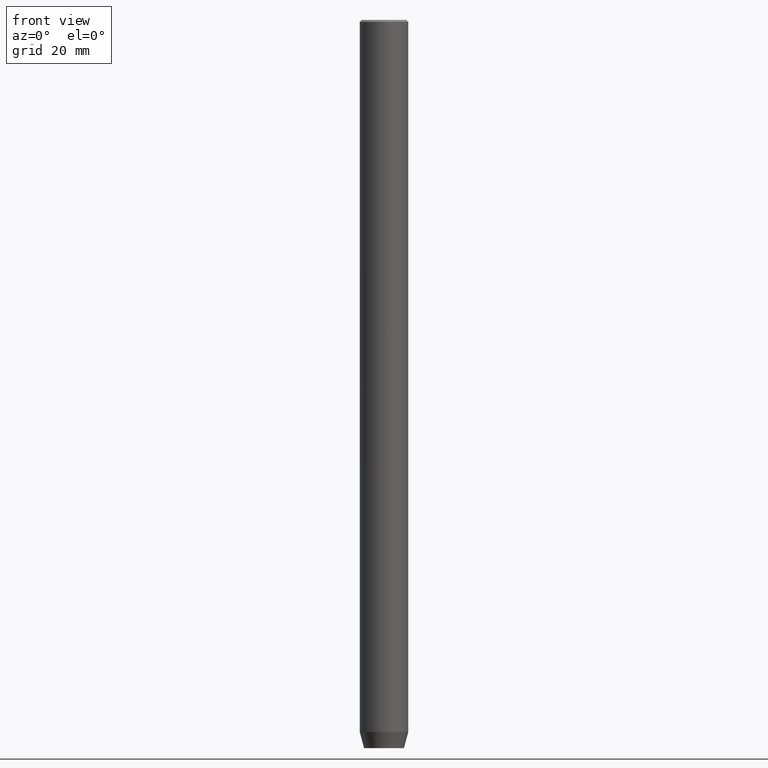
[diagram: clean part render]
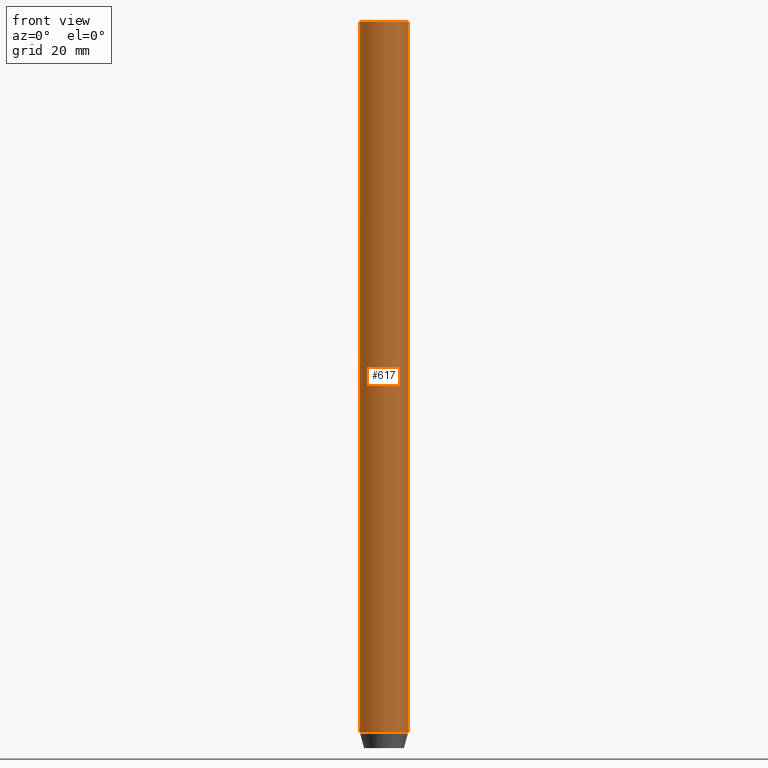
[diagram: same view with one face highlighted and labeled with its STEP entity id]
A machine part, front view. The second image highlights one B-rep face of the part: STEP entity #617.
In plain terms, the highlighted cylindrical surface (edge-blend (fillet) strip) has radius 6 mm, axis along (-0, -0, 1).
Its self-contained STEP definition (entity closure, byte-faithful):
#4 = CARTESIAN_POINT ( 'NONE',  ( 0.000000000000000000, 0.000000000000000000, -0.4999999999999891753 ) ) ;
#7 = DIRECTION ( 'NONE',  ( 1.000000000000000000, 0.000000000000000000, 0.000000000000000000 ) ) ;
#12 = EDGE_CURVE ( 'NONE', #48, #226, #301, .T. ) ;
#21 = AXIS2_PLACEMENT_3D ( 'NONE', #245, #154, #491 ) ;
#27 = AXIS2_PLACEMENT_3D ( 'NONE', #4, #549, #7 ) ;
#32 = DIRECTION ( 'NONE',  ( -0.000000000000000000, -0.000000000000000000, 1.000000000000000000 ) ) ;
#38 = DIRECTION ( 'NONE',  ( -0.000000000000000000, -0.000000000000000000, 1.000000000000000000 ) ) ;
#48 = VERTEX_POINT ( 'NONE', #298 ) ;
#70 = CIRCLE ( 'NONE', #27, 6.000000000000000000 ) ;
#80 = ORIENTED_EDGE ( 'NONE', *, *, #444, .T. ) ;
#86 = DIRECTION ( 'NONE',  ( 1.000000000000000000, 0.000000000000000000, 0.000000000000000000 ) ) ;
#95 = CARTESIAN_POINT ( 'NONE',  ( 6.000000000000000000, 0.000000000000000000, 0.000000000000000000 ) ) ;
#136 = VECTOR ( 'NONE', #38, 1000.000000000000000 ) ;
#154 = DIRECTION ( 'NONE',  ( -0.000000000000000000, -0.000000000000000000, 1.000000000000000000 ) ) ;
#181 = CARTESIAN_POINT ( 'NONE',  ( 0.000000000000000000, 0.000000000000000000, 0.000000000000000000 ) ) ;
#210 = ORIENTED_EDGE ( 'NONE', *, *, #315, .F. ) ;
#226 = VERTEX_POINT ( 'NONE', #501 ) ;
#228 = AXIS2_PLACEMENT_3D ( 'NONE', #181, #32, #86 ) ;
#245 = CARTESIAN_POINT ( 'NONE',  ( 0.000000000000000000, 0.000000000000000000, -176.0000000000000000 ) ) ;
#272 = CYLINDRICAL_SURFACE ( 'NONE', #228, 6.000000000000000000 ) ;
#281 = ORIENTED_EDGE ( 'NONE', *, *, #12, .T. ) ;
#292 = VECTOR ( 'NONE', #393, 1000.000000000000000 ) ;
#298 = CARTESIAN_POINT ( 'NONE',  ( -6.000000000000000000, 7.347880794884119736E-16, -176.0000000000000000 ) ) ;
#301 = CIRCLE ( 'NONE', #21, 6.000000000000000000 ) ;
#315 = EDGE_CURVE ( 'NONE', #48, #426, #345, .T. ) ;
#345 = LINE ( 'NONE', #396, #292 ) ;
#354 = EDGE_LOOP ( 'NONE', ( #210, #281, #486, #80 ) ) ;
#373 = EDGE_CURVE ( 'NONE', #226, #599, #626, .T. ) ;
#393 = DIRECTION ( 'NONE',  ( -0.000000000000000000, -0.000000000000000000, 1.000000000000000000 ) ) ;
#396 = CARTESIAN_POINT ( 'NONE',  ( -6.000000000000000000, 7.347880794884119736E-16, 0.000000000000000000 ) ) ;
#426 = VERTEX_POINT ( 'NONE', #509 ) ;
#444 = EDGE_CURVE ( 'NONE', #599, #426, #70, .T. ) ;
#486 = ORIENTED_EDGE ( 'NONE', *, *, #373, .T. ) ;
#491 = DIRECTION ( 'NONE',  ( 1.000000000000000000, 0.000000000000000000, 0.000000000000000000 ) ) ;
#501 = CARTESIAN_POINT ( 'NONE',  ( 6.000000000000000000, 0.000000000000000000, -176.0000000000000000 ) ) ;
#509 = CARTESIAN_POINT ( 'NONE',  ( -6.000000000000000000, 7.347880794884119736E-16, -0.4999999999999891753 ) ) ;
#526 = CARTESIAN_POINT ( 'NONE',  ( 6.000000000000000000, 0.000000000000000000, -0.4999999999999891753 ) ) ;
#549 = DIRECTION ( 'NONE',  ( 0.000000000000000000, 0.000000000000000000, -1.000000000000000000 ) ) ;
#599 = VERTEX_POINT ( 'NONE', #526 ) ;
#613 = FACE_OUTER_BOUND ( 'NONE', #354, .T. ) ;
#617 = ADVANCED_FACE ( 'NONE', ( #613 ), #272, .T. ) ;
#626 = LINE ( 'NONE', #95, #136 ) ;